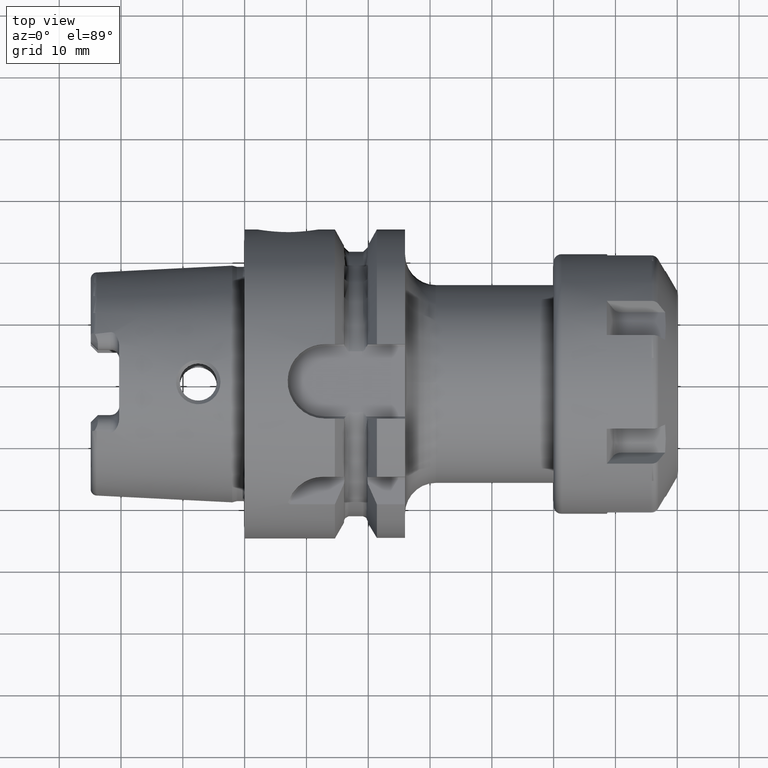
[diagram: clean part render]
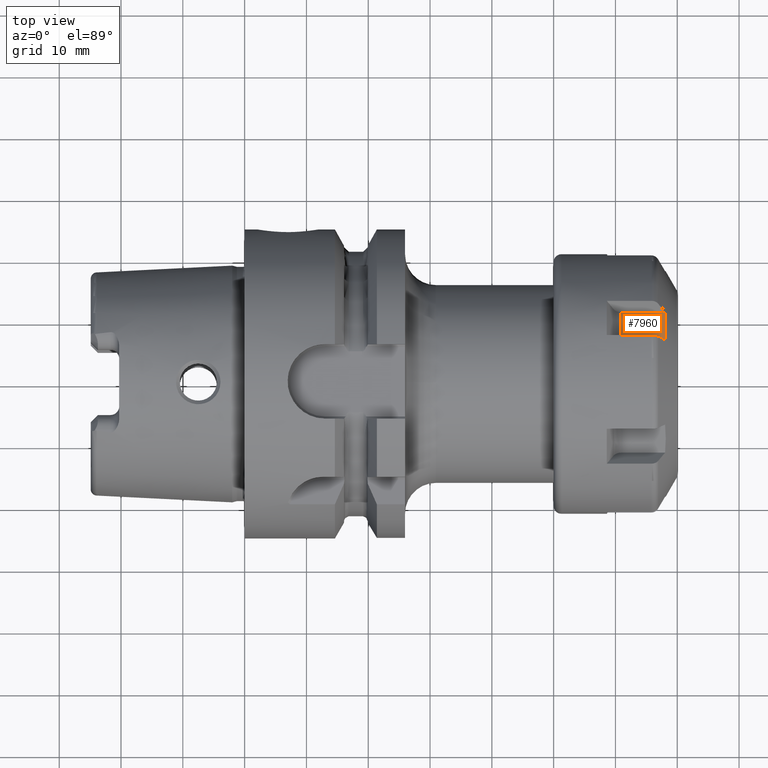
[diagram: same view with one face highlighted and labeled with its STEP entity id]
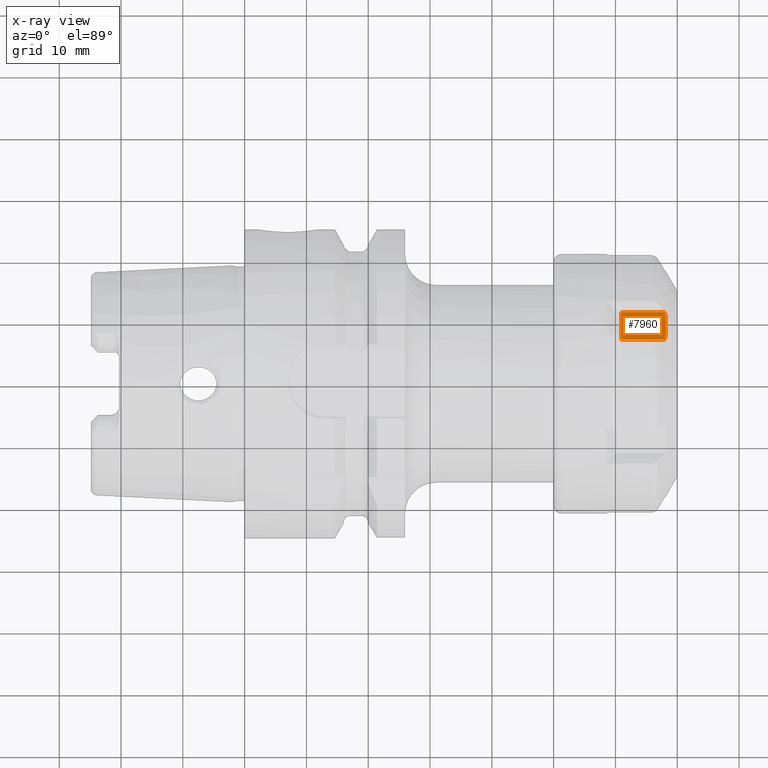
[diagram: x-ray of the same camera — body ghosted, the highlighted face saturated]
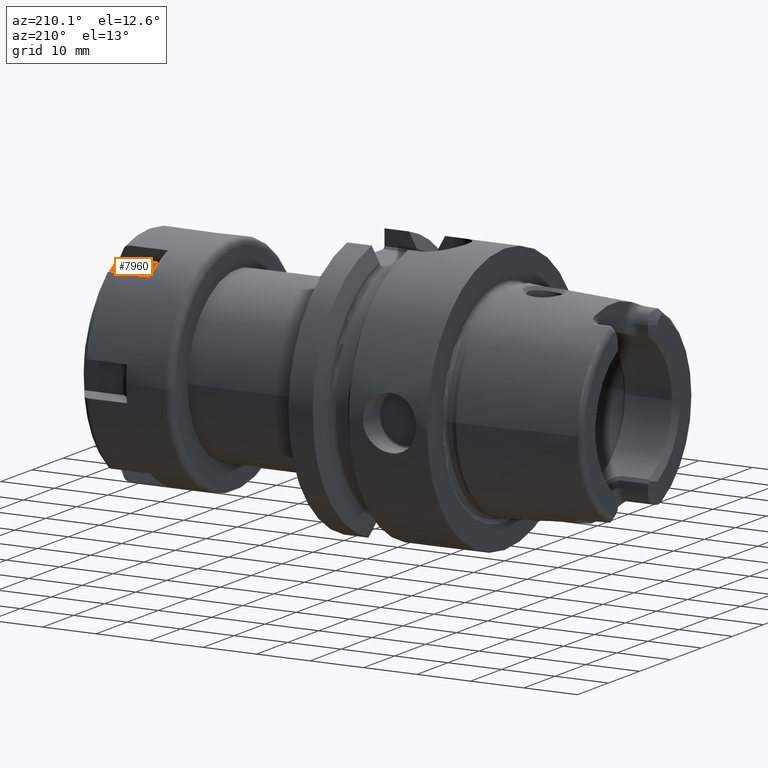
[diagram: same view with one face highlighted and labeled with its STEP entity id]
A machine part, top view. The second image highlights one B-rep face of the part: STEP entity #7960.
The next image is the same camera in x-ray: the body ghosted, the highlighted face saturated — about 0% of this face is hidden behind the body in this view.
A second angle (auxiliary view) of the same face is appended — the face is thin or edge-on in the first view.
In plain terms, the highlighted planar face has unit normal (0, -0.5, -0.866).
Its self-contained STEP definition (entity closure, byte-faithful):
#6999=CARTESIAN_POINT('',(1.091113833073E1,1.136443912829E1,1.448378596865E1));
#7005=DIRECTION('',(-1.E0,3.118967310806E-10,3.910864108558E-10));
#7006=VECTOR('',#7005,7.120059108101E0);
#7007=CARTESIAN_POINT('',(1.803119743883E1,1.136443912607E1,1.448378596587E1));
#7008=LINE('',#7007,#7006);
#7009=CARTESIAN_POINT('',(1.091113755103E1,6.861107041823E0,1.708378599713E1));
#7021=CARTESIAN_POINT('',(1.091113833073E1,1.136443912829E1,1.448378596865E1));
#7022=CARTESIAN_POINT('',(1.093747066196E1,1.106368324475E1,1.465742753776E1));
#7023=CARTESIAN_POINT('',(1.098158112237E1,1.044718263572E1,1.501336420927E1));
#7024=CARTESIAN_POINT('',(1.101500930010E1,9.423722292247E0,1.560425936175E1));
#7025=CARTESIAN_POINT('',(1.100709179953E1,8.460792494351E0,1.616020713070E1));
#7026=CARTESIAN_POINT('',(1.097041869191E1,7.615600541119E0,1.664817892106E1));
#7027=CARTESIAN_POINT('',(1.093229129883E1,7.102705637055E0,1.694429896832E1));
#7028=CARTESIAN_POINT('',(1.091113755103E1,6.861107041823E0,1.708378599713E1));
#7030=DIRECTION('',(-1.E0,2.168062584967E-9,4.390716497527E-9));
#7031=VECTOR('',#7030,7.120059887799E0);
#7032=CARTESIAN_POINT('',(1.803119743883E1,6.861107026386E0,1.708378596587E1));
#7033=LINE('',#7032,#7031);
#7069=CARTESIAN_POINT('',(1.803119743883E1,6.861107026386E0,1.708378596587E1));
#7075=CARTESIAN_POINT('',(1.803119743883E1,1.136443912607E1,1.448378596587E1));
#7076=CARTESIAN_POINT('',(1.807831826555E1,1.086395978015E1,1.477273785096E1));
#7077=CARTESIAN_POINT('',(1.814168574823E1,9.863120560131E0,1.535057264405E1));
#7078=CARTESIAN_POINT('',(1.814168449187E1,8.362394930781E0,1.621701699013E1));
#7079=CARTESIAN_POINT('',(1.807831703246E1,7.361573275411E0,1.679484164227E1));
#7080=CARTESIAN_POINT('',(1.803119743883E1,6.861107026386E0,1.708378596587E1));
#7086=CARTESIAN_POINT('',(1.803119743883E1,1.136443912607E1,1.448378596587E1));
#7546=VERTEX_POINT('',#7086);
#7547=VERTEX_POINT('',#7069);
#7555=VERTEX_POINT('',#7009);
#7558=VERTEX_POINT('',#6999);
#7948=CARTESIAN_POINT('',(2.E1,6.861107026386E0,1.708378596587E1));
#7949=DIRECTION('',(0.E0,-5.E-1,-8.660254037844E-1));
#7950=DIRECTION('',(0.E0,8.660254037844E-1,-5.E-1));
#7951=AXIS2_PLACEMENT_3D('',#7948,#7949,#7950);
#7952=PLANE('',#7951);
#7953=ORIENTED_EDGE('',*,*,#7925,.F.);
#7954=ORIENTED_EDGE('',*,*,#7878,.F.);
#7956=ORIENTED_EDGE('',*,*,#7955,.T.);
#7957=ORIENTED_EDGE('',*,*,#7936,.T.);
#7958=EDGE_LOOP('',(#7953,#7954,#7956,#7957));
#7959=FACE_OUTER_BOUND('',#7958,.F.);
#7960=ADVANCED_FACE('',(#7959),#7952,.F.);
#7029=B_SPLINE_CURVE_WITH_KNOTS('',3,(#7021,#7022,#7023,#7024,#7025,#7026,#7027,
#7028),.UNSPECIFIED.,.F.,.F.,(4,1,1,1,1,4),(0.E0,2.E-1,4.E-1,6.E-1,8.E-1,1.E0),
.UNSPECIFIED.);
#7081=B_SPLINE_CURVE_WITH_KNOTS('',3,(#7075,#7076,#7077,#7078,#7079,#7080),
.UNSPECIFIED.,.F.,.F.,(4,1,1,4),(0.E0,3.333333333333E-1,6.666666666667E-1,1.E0),
.UNSPECIFIED.);
#7878=EDGE_CURVE('',#7546,#7558,#7008,.T.);
#7925=EDGE_CURVE('',#7558,#7555,#7029,.T.);
#7936=EDGE_CURVE('',#7547,#7555,#7033,.T.);
#7955=EDGE_CURVE('',#7546,#7547,#7081,.T.);